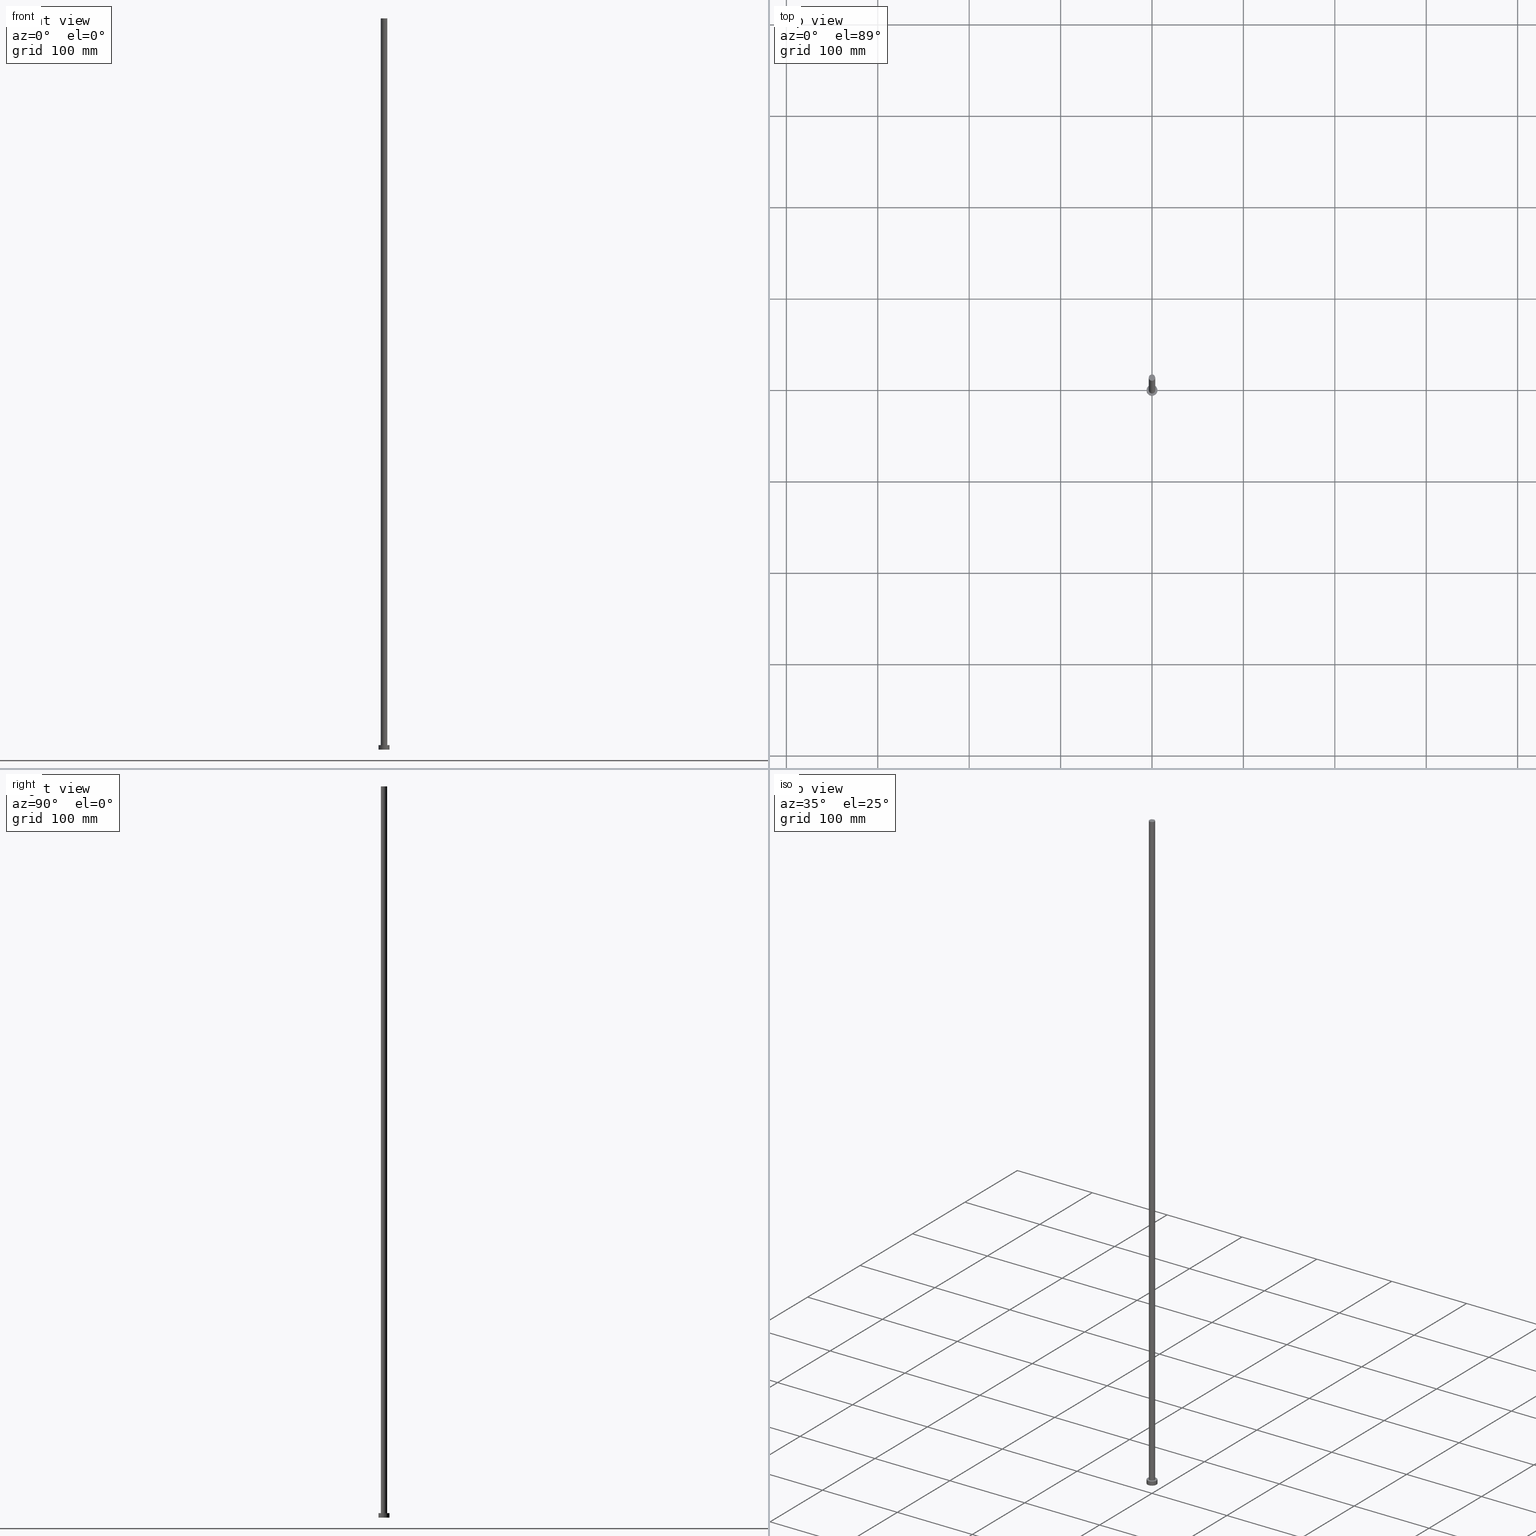
[diagram: canonical four-view strip — front | top / right | iso, engineering-drawing reading convention]
A machine part, canonical four-view strip (front | top / right | iso — engineering-drawing reading convention). The complete STEP part file that produces these views, byte-faithful:
ISO-10303-21;
HEADER;
FILE_DESCRIPTION (( 'STEP AP203' ),
    '1' );
FILE_NAME ('a31a.STEP',
    '2023-02-13T14:48:02',
    ( '' ),
    ( '' ),
    'SwSTEP 2.0',
    'SolidWorks 2019',
    '' );
FILE_SCHEMA (( 'CONFIG_CONTROL_DESIGN' ));
ENDSEC;

DATA;
#1 = CIRCLE ( 'NONE', #143, 6.000000000000000888 ) ;
#2 = CARTESIAN_POINT ( 'NONE',  ( 6.000000000000000888, 7.347880794884120722E-16, 5.000000000000000000 ) ) ;
#3 = PERSON_AND_ORGANIZATION_ROLE ( 'design_owner' ) ;
#4 = FACE_OUTER_BOUND ( 'NONE', #161, .T. ) ;
#5 = DIRECTION ( 'NONE',  ( 1.000000000000000000, 0.000000000000000000, -0.000000000000000000 ) ) ;
#6 = EDGE_LOOP ( 'NONE', ( #187, #248, #135, #122 ) ) ;
#7 = AXIS2_PLACEMENT_3D ( 'NONE', #133, #88, #115 ) ;
#8 = ORIENTED_EDGE ( 'NONE', *, *, #230, .T. ) ;
#9 = DIRECTION ( 'NONE',  ( 1.000000000000000000, 0.000000000000000000, 0.000000000000000000 ) ) ;
#10 = EDGE_LOOP ( 'NONE', ( #164, #141 ) ) ;
#11 = EDGE_CURVE ( 'NONE', #70, #186, #55, .T. ) ;
#12 = APPLICATION_CONTEXT ( 'configuration controlled 3d designs of mechanical parts and assemblies' ) ;
#13 = CC_DESIGN_APPROVAL ( #254, ( #110 ) ) ;
#14 = ADVANCED_FACE ( 'NONE', ( #131 ), #15, .T. ) ;
#15 = CYLINDRICAL_SURFACE ( 'NONE', #156, 3.500000000000000000 ) ;
#16 = EDGE_CURVE ( 'NONE', #118, #33, #235, .T. ) ;
#17 = AXIS2_PLACEMENT_3D ( 'NONE', #97, #181, #196 ) ;
#18 = EDGE_CURVE ( 'NONE', #186, #70, #192, .T. ) ;
#19 = CYLINDRICAL_SURFACE ( 'NONE', #106, 3.500000000000000000 ) ;
#20 = CC_DESIGN_PERSON_AND_ORGANIZATION_ASSIGNMENT ( #111, #66, ( #207 ) ) ;
#21 = CARTESIAN_POINT ( 'NONE',  ( 0.000000000000000000, 0.000000000000000000, 5.000000000000000000 ) ) ;
#22 = CARTESIAN_POINT ( 'NONE',  ( 6.000000000000000888, 7.347880794884120722E-16, 0.000000000000000000 ) ) ;
#23 = APPROVAL_PERSON_ORGANIZATION ( #231, #95, #153 ) ;
#24 = ORIENTED_EDGE ( 'NONE', *, *, #58, .F. ) ;
#25 = FACE_OUTER_BOUND ( 'NONE', #6, .T. ) ;
#26 = DIRECTION ( 'NONE',  ( 1.000000000000000000, 0.000000000000000000, 0.000000000000000000 ) ) ;
#27 = VERTEX_POINT ( 'NONE', #179 ) ;
#28 = PERSON_AND_ORGANIZATION ( #38, #194 ) ;
#29 = CC_DESIGN_SECURITY_CLASSIFICATION ( #110, ( #207 ) ) ;
#30 = ORIENTED_EDGE ( 'NONE', *, *, #11, .T. ) ;
#31 = DIRECTION ( 'NONE',  ( 0.000000000000000000, 0.000000000000000000, 1.000000000000000000 ) ) ;
#32 = MANIFOLD_SOLID_BREP ( 'P�idat vysunut�m3', #204 ) ;
#33 = VERTEX_POINT ( 'NONE', #144 ) ;
#34 = ADVANCED_FACE ( 'NONE', ( #182 ), #223, .T. ) ;
#35 = CC_DESIGN_PERSON_AND_ORGANIZATION_ASSIGNMENT ( #218, #51, ( #227 ) ) ;
#36 = CIRCLE ( 'NONE', #71, 6.000000000000000888 ) ;
#37 = VECTOR ( 'NONE', #173, 1000.000000000000000 ) ;
#38 = PERSON ( 'NEUR�EN�', 'NEUR�EN�', 'NEUR�EN�', ('NEUR�EN�'), ('NEUR�EN�'), ('NEUR�EN�') ) ;
#39 = DIRECTION ( 'NONE',  ( 1.000000000000000000, 0.000000000000000000, 0.000000000000000000 ) ) ;
#40 = ORIENTED_EDGE ( 'NONE', *, *, #16, .F. ) ;
#41 = CC_DESIGN_PERSON_AND_ORGANIZATION_ASSIGNMENT ( #28, #3, ( #169 ) ) ;
#42 = DATE_TIME_ROLE ( 'creation_date' ) ;
#43 = UNCERTAINTY_MEASURE_WITH_UNIT (LENGTH_MEASURE( 1.000000000000000082E-05 ), #65, 'distance_accuracy_value', 'NONE');
#44 = CARTESIAN_POINT ( 'NONE',  ( 3.500000000000000000, 4.286263797015736595E-16, 800.0000000000000000 ) ) ;
#45 = AXIS2_PLACEMENT_3D ( 'NONE', #117, #94, #112 ) ;
#46 = APPROVAL ( #64, 'NEUR�EN�' ) ;
#47 = EDGE_LOOP ( 'NONE', ( #242, #8, #225, #147 ) ) ;
#48 = CIRCLE ( 'NONE', #7, 6.000000000000000888 ) ;
#49 = CC_DESIGN_PERSON_AND_ORGANIZATION_ASSIGNMENT ( #132, #212, ( #110 ) ) ;
#50 = DIRECTION ( 'NONE',  ( 0.000000000000000000, 0.000000000000000000, 1.000000000000000000 ) ) ;
#51 = PERSON_AND_ORGANIZATION_ROLE ( 'creator' ) ;
#52 = VECTOR ( 'NONE', #60, 1000.000000000000000 ) ;
#53 = CARTESIAN_POINT ( 'NONE',  ( 0.000000000000000000, 0.000000000000000000, 5.000000000000000000 ) ) ;
#54 = AXIS2_PLACEMENT_3D ( 'NONE', #84, #160, #68 ) ;
#55 = CIRCLE ( 'NONE', #252, 3.500000000000000000 ) ;
#56 = COORDINATED_UNIVERSAL_TIME_OFFSET ( 1, 0, .AHEAD. ) ;
#57 = LOCAL_TIME ( 15, 48, 2.000000000000000000, #154 ) ;
#58 = EDGE_CURVE ( 'NONE', #198, #118, #36, .T. ) ;
#59 = DESIGN_CONTEXT ( 'detailed design', #12, 'design' ) ;
#60 = DIRECTION ( 'NONE',  ( -0.000000000000000000, -0.000000000000000000, -1.000000000000000000 ) ) ;
#61 = COORDINATED_UNIVERSAL_TIME_OFFSET ( 1, 0, .AHEAD. ) ;
#62 = CARTESIAN_POINT ( 'NONE',  ( -3.500000000000000000, 0.000000000000000000, 800.0000000000000000 ) ) ;
#63 = AXIS2_PLACEMENT_3D ( 'NONE', #21, #83, #240 ) ;
#64 = APPROVAL_STATUS ( 'not_yet_approved' ) ;
#65 =( LENGTH_UNIT ( ) NAMED_UNIT ( * ) SI_UNIT ( .MILLI., .METRE. ) );
#66 = PERSON_AND_ORGANIZATION_ROLE ( 'design_supplier' ) ;
#67 = EDGE_LOOP ( 'NONE', ( #86, #162, #113, #219 ) ) ;
#68 = DIRECTION ( 'NONE',  ( 1.000000000000000000, 0.000000000000000000, 0.000000000000000000 ) ) ;
#69 = PERSON_AND_ORGANIZATION_ROLE ( 'creator' ) ;
#70 = VERTEX_POINT ( 'NONE', #62 ) ;
#71 = AXIS2_PLACEMENT_3D ( 'NONE', #201, #31, #9 ) ;
#72 = CIRCLE ( 'NONE', #54, 6.000000000000000888 ) ;
#73 = CALENDAR_DATE ( 2023, 13, 2 ) ;
#74 = VECTOR ( 'NONE', #233, 1000.000000000000000 ) ;
#75 = CARTESIAN_POINT ( 'NONE',  ( 6.000000000000000888, 7.347880794884120722E-16, 5.000000000000000000 ) ) ;
#76 = CARTESIAN_POINT ( 'NONE',  ( 0.000000000000000000, 0.000000000000000000, 5.000000000000000000 ) ) ;
#77 = PERSON_AND_ORGANIZATION ( #38, #194 ) ;
#78 = CARTESIAN_POINT ( 'NONE',  ( 0.000000000000000000, 0.000000000000000000, 800.0000000000000000 ) ) ;
#79 = AXIS2_PLACEMENT_3D ( 'NONE', #53, #146, #185 ) ;
#80 = CARTESIAN_POINT ( 'NONE',  ( -6.000000000000000888, 0.000000000000000000, 5.000000000000000000 ) ) ;
#81 = PLANE ( 'NONE',  #163 ) ;
#82 = APPLICATION_PROTOCOL_DEFINITION ( 'international standard', 'config_control_design', 1994, #12 ) ;
#83 = DIRECTION ( 'NONE',  ( 0.000000000000000000, 0.000000000000000000, 1.000000000000000000 ) ) ;
#84 = CARTESIAN_POINT ( 'NONE',  ( 0.000000000000000000, 0.000000000000000000, 0.000000000000000000 ) ) ;
#85 = ADVANCED_FACE ( 'NONE', ( #4 ), #213, .T. ) ;
#86 = ORIENTED_EDGE ( 'NONE', *, *, #230, .F. ) ;
#87 = EDGE_CURVE ( 'NONE', #33, #180, #48, .T. ) ;
#88 = DIRECTION ( 'NONE',  ( 0.000000000000000000, 0.000000000000000000, 1.000000000000000000 ) ) ;
#89 = CALENDAR_DATE ( 2023, 13, 2 ) ;
#90 = CC_DESIGN_PERSON_AND_ORGANIZATION_ASSIGNMENT ( #200, #69, ( #207 ) ) ;
#91 = VECTOR ( 'NONE', #215, 1000.000000000000000 ) ;
#92 = PRODUCT_DEFINITION_SHAPE ( 'NONE', 'NONE',  #227 ) ;
#93 = CALENDAR_DATE ( 2023, 13, 2 ) ;
#94 = DIRECTION ( 'NONE',  ( -0.000000000000000000, -0.000000000000000000, -1.000000000000000000 ) ) ;
#95 = APPROVAL ( #105, 'NEUR�EN�' ) ;
#96 = DIRECTION ( 'NONE',  ( -0.000000000000000000, -0.000000000000000000, -1.000000000000000000 ) ) ;
#97 = CARTESIAN_POINT ( 'NONE',  ( 0.000000000000000000, 0.000000000000000000, 800.0000000000000000 ) ) ;
#98 = ADVANCED_FACE ( 'NONE', ( #114 ), #19, .T. ) ;
#99 = AXIS2_PLACEMENT_3D ( 'NONE', #234, #229, #39 ) ;
#100 = DIRECTION ( 'NONE',  ( 1.000000000000000000, 0.000000000000000000, -0.000000000000000000 ) ) ;
#101 = ADVANCED_BREP_SHAPE_REPRESENTATION ( 'a31a', ( #32, #99 ), #246 ) ;
#102 = ORIENTED_EDGE ( 'NONE', *, *, #126, .F. ) ;
#103 = ORIENTED_EDGE ( 'NONE', *, *, #58, .T. ) ;
#104 = DATE_AND_TIME ( #89, #108 ) ;
#105 = APPROVAL_STATUS ( 'not_yet_approved' ) ;
#106 = AXIS2_PLACEMENT_3D ( 'NONE', #244, #96, #237 ) ;
#107 = EDGE_LOOP ( 'NONE', ( #24, #238, #245, #40 ) ) ;
#108 = LOCAL_TIME ( 15, 48, 2.000000000000000000, #155 ) ;
#109 = DIRECTION ( 'NONE',  ( -0.000000000000000000, -0.000000000000000000, -1.000000000000000000 ) ) ;
#110 = SECURITY_CLASSIFICATION ( '', '', #191 ) ;
#111 = PERSON_AND_ORGANIZATION ( #38, #194 ) ;
#112 = DIRECTION ( 'NONE',  ( -1.000000000000000000, 0.000000000000000000, 0.000000000000000000 ) ) ;
#113 = ORIENTED_EDGE ( 'NONE', *, *, #149, .T. ) ;
#114 = FACE_OUTER_BOUND ( 'NONE', #67, .T. ) ;
#115 = DIRECTION ( 'NONE',  ( 1.000000000000000000, 0.000000000000000000, 0.000000000000000000 ) ) ;
#116 = APPROVAL_ROLE ( '' ) ;
#117 = CARTESIAN_POINT ( 'NONE',  ( 0.000000000000000000, 0.000000000000000000, 5.000000000000000000 ) ) ;
#118 = VERTEX_POINT ( 'NONE', #80 ) ;
#119 = DIRECTION ( 'NONE',  ( 1.000000000000000000, 0.000000000000000000, 0.000000000000000000 ) ) ;
#120 = LOCAL_TIME ( 15, 48, 2.000000000000000000, #167 ) ;
#121 = CARTESIAN_POINT ( 'NONE',  ( 3.500000000000000000, 4.286263797015736595E-16, 5.000000000000000000 ) ) ;
#122 = ORIENTED_EDGE ( 'NONE', *, *, #87, .T. ) ;
#123 = DIRECTION ( 'NONE',  ( 1.000000000000000000, 0.000000000000000000, 0.000000000000000000 ) ) ;
#124 = APPROVAL_DATE_TIME ( #104, #46 ) ;
#125 = ORIENTED_EDGE ( 'NONE', *, *, #128, .T. ) ;
#126 = EDGE_CURVE ( 'NONE', #27, #157, #148, .T. ) ;
#127 = SHAPE_DEFINITION_REPRESENTATION ( #92, #101 ) ;
#128 = EDGE_CURVE ( 'NONE', #118, #198, #1, .T. ) ;
#129 = APPROVAL_ROLE ( '' ) ;
#130 = APPROVAL_PERSON_ORGANIZATION ( #255, #254, #129 ) ;
#131 = FACE_OUTER_BOUND ( 'NONE', #47, .T. ) ;
#132 = PERSON_AND_ORGANIZATION ( #38, #194 ) ;
#133 = CARTESIAN_POINT ( 'NONE',  ( 0.000000000000000000, 0.000000000000000000, 0.000000000000000000 ) ) ;
#134 = FACE_BOUND ( 'NONE', #137, .T. ) ;
#135 = ORIENTED_EDGE ( 'NONE', *, *, #16, .T. ) ;
#136 = LINE ( 'NONE', #221, #91 ) ;
#137 = EDGE_LOOP ( 'NONE', ( #102, #178 ) ) ;
#138 = CYLINDRICAL_SURFACE ( 'NONE', #45, 6.000000000000000888 ) ;
#139 = CARTESIAN_POINT ( 'NONE',  ( -6.000000000000000888, 0.000000000000000000, 5.000000000000000000 ) ) ;
#140 = APPROVAL_DATE_TIME ( #247, #95 ) ;
#141 = ORIENTED_EDGE ( 'NONE', *, *, #220, .F. ) ;
#142 = DIRECTION ( 'NONE',  ( 0.000000000000000000, 0.000000000000000000, 1.000000000000000000 ) ) ;
#143 = AXIS2_PLACEMENT_3D ( 'NONE', #76, #176, #119 ) ;
#144 = CARTESIAN_POINT ( 'NONE',  ( -6.000000000000000888, 0.000000000000000000, 0.000000000000000000 ) ) ;
#145 = DATE_AND_TIME ( #174, #57 ) ;
#146 = DIRECTION ( 'NONE',  ( -0.000000000000000000, -0.000000000000000000, -1.000000000000000000 ) ) ;
#147 = ORIENTED_EDGE ( 'NONE', *, *, #149, .F. ) ;
#148 = CIRCLE ( 'NONE', #224, 3.500000000000000000 ) ;
#149 = EDGE_CURVE ( 'NONE', #70, #27, #136, .T. ) ;
#150 = APPROVAL_DATE_TIME ( #189, #254 ) ;
#151 = APPLICATION_PROTOCOL_DEFINITION ( 'international standard', 'config_control_design', 1994, #170 ) ;
#152 = EDGE_CURVE ( 'NONE', #157, #27, #184, .T. ) ;
#153 = APPROVAL_ROLE ( '' ) ;
#154 = COORDINATED_UNIVERSAL_TIME_OFFSET ( 1, 0, .AHEAD. ) ;
#155 = COORDINATED_UNIVERSAL_TIME_OFFSET ( 1, 0, .AHEAD. ) ;
#156 = AXIS2_PLACEMENT_3D ( 'NONE', #228, #109, #203 ) ;
#157 = VERTEX_POINT ( 'NONE', #121 ) ;
#158 = DIRECTION ( 'NONE',  ( 0.000000000000000000, 0.000000000000000000, 1.000000000000000000 ) ) ;
#159 = ORIENTED_EDGE ( 'NONE', *, *, #18, .T. ) ;
#160 = DIRECTION ( 'NONE',  ( 0.000000000000000000, 0.000000000000000000, 1.000000000000000000 ) ) ;
#161 = EDGE_LOOP ( 'NONE', ( #30, #159 ) ) ;
#162 = ORIENTED_EDGE ( 'NONE', *, *, #11, .F. ) ;
#163 = AXIS2_PLACEMENT_3D ( 'NONE', #177, #50, #5 ) ;
#164 = ORIENTED_EDGE ( 'NONE', *, *, #87, .F. ) ;
#165 = DIRECTION ( 'NONE',  ( 0.000000000000000000, 0.000000000000000000, 1.000000000000000000 ) ) ;
#166 = APPROVAL_PERSON_ORGANIZATION ( #77, #46, #116 ) ;
#167 = COORDINATED_UNIVERSAL_TIME_OFFSET ( 1, 0, .AHEAD. ) ;
#168 = CC_DESIGN_DATE_AND_TIME_ASSIGNMENT ( #145, #222, ( #110 ) ) ;
#169 = PRODUCT ( 'a31a', 'a31a', '', ( #239 ) ) ;
#170 = APPLICATION_CONTEXT ( 'configuration controlled 3d designs of mechanical parts and assemblies' ) ;
#171 =( NAMED_UNIT ( * ) PLANE_ANGLE_UNIT ( ) SI_UNIT ( $, .RADIAN. ) );
#172 = ADVANCED_FACE ( 'NONE', ( #25 ), #138, .T. ) ;
#173 = DIRECTION ( 'NONE',  ( -0.000000000000000000, -0.000000000000000000, -1.000000000000000000 ) ) ;
#174 = CALENDAR_DATE ( 2023, 13, 2 ) ;
#175 = CARTESIAN_POINT ( 'NONE',  ( 0.000000000000000000, 0.000000000000000000, 5.000000000000000000 ) ) ;
#176 = DIRECTION ( 'NONE',  ( 0.000000000000000000, 0.000000000000000000, 1.000000000000000000 ) ) ;
#177 = CARTESIAN_POINT ( 'NONE',  ( 0.000000000000000000, 0.000000000000000000, 0.000000000000000000 ) ) ;
#178 = ORIENTED_EDGE ( 'NONE', *, *, #152, .F. ) ;
#179 = CARTESIAN_POINT ( 'NONE',  ( -3.500000000000000000, 0.000000000000000000, 5.000000000000000000 ) ) ;
#180 = VERTEX_POINT ( 'NONE', #22 ) ;
#181 = DIRECTION ( 'NONE',  ( 0.000000000000000000, 0.000000000000000000, 1.000000000000000000 ) ) ;
#182 = FACE_OUTER_BOUND ( 'NONE', #107, .T. ) ;
#183 = AXIS2_PLACEMENT_3D ( 'NONE', #78, #158, #26 ) ;
#184 = CIRCLE ( 'NONE', #63, 3.500000000000000000 ) ;
#185 = DIRECTION ( 'NONE',  ( -1.000000000000000000, 0.000000000000000000, 0.000000000000000000 ) ) ;
#186 = VERTEX_POINT ( 'NONE', #236 ) ;
#187 = ORIENTED_EDGE ( 'NONE', *, *, #251, .F. ) ;
#188 = ADVANCED_FACE ( 'NONE', ( #134, #214 ), #241, .T. ) ;
#189 = DATE_AND_TIME ( #73, #120 ) ;
#190 = CC_DESIGN_DATE_AND_TIME_ASSIGNMENT ( #195, #42, ( #227 ) ) ;
#191 = SECURITY_CLASSIFICATION_LEVEL ( 'unclassified' ) ;
#192 = CIRCLE ( 'NONE', #183, 3.500000000000000000 ) ;
#193 = DIRECTION ( 'NONE',  ( 0.000000000000000000, 0.000000000000000000, 1.000000000000000000 ) ) ;
#194 = ORGANIZATION ( 'NEUR�EN�', 'NEUR�EN�', '' ) ;
#195 = DATE_AND_TIME ( #208, #232 ) ;
#196 = DIRECTION ( 'NONE',  ( 1.000000000000000000, 0.000000000000000000, -0.000000000000000000 ) ) ;
#197 = CC_DESIGN_APPROVAL ( #95, ( #227 ) ) ;
#198 = VERTEX_POINT ( 'NONE', #2 ) ;
#199 = CARTESIAN_POINT ( 'NONE',  ( 0.000000000000000000, 0.000000000000000000, 5.000000000000000000 ) ) ;
#200 = PERSON_AND_ORGANIZATION ( #38, #194 ) ;
#201 = CARTESIAN_POINT ( 'NONE',  ( 0.000000000000000000, 0.000000000000000000, 5.000000000000000000 ) ) ;
#202 = EDGE_LOOP ( 'NONE', ( #125, #103 ) ) ;
#203 = DIRECTION ( 'NONE',  ( -1.000000000000000000, 0.000000000000000000, 0.000000000000000000 ) ) ;
#204 = CLOSED_SHELL ( 'NONE', ( #14, #34, #172, #188, #206, #98, #85 ) ) ;
#205 = PRODUCT_RELATED_PRODUCT_CATEGORY ( 'detail', '', ( #169 ) ) ;
#206 = ADVANCED_FACE ( 'NONE', ( #217 ), #81, .F. ) ;
#207 = PRODUCT_DEFINITION_FORMATION_WITH_SPECIFIED_SOURCE ( 'LIBOVOLN�', '', #169, .NOT_KNOWN. ) ;
#208 = CALENDAR_DATE ( 2023, 13, 2 ) ;
#209 =( NAMED_UNIT ( * ) SI_UNIT ( $, .STERADIAN. ) SOLID_ANGLE_UNIT ( ) );
#210 = LINE ( 'NONE', #44, #37 ) ;
#211 = LINE ( 'NONE', #75, #74 ) ;
#212 = PERSON_AND_ORGANIZATION_ROLE ( 'classification_officer' ) ;
#213 = PLANE ( 'NONE',  #17 ) ;
#214 = FACE_OUTER_BOUND ( 'NONE', #202, .T. ) ;
#215 = DIRECTION ( 'NONE',  ( -0.000000000000000000, -0.000000000000000000, -1.000000000000000000 ) ) ;
#216 = APPROVAL_STATUS ( 'not_yet_approved' ) ;
#217 = FACE_OUTER_BOUND ( 'NONE', #10, .T. ) ;
#218 = PERSON_AND_ORGANIZATION ( #38, #194 ) ;
#219 = ORIENTED_EDGE ( 'NONE', *, *, #126, .T. ) ;
#220 = EDGE_CURVE ( 'NONE', #180, #33, #72, .T. ) ;
#221 = CARTESIAN_POINT ( 'NONE',  ( -3.500000000000000000, 0.000000000000000000, 800.0000000000000000 ) ) ;
#222 = DATE_TIME_ROLE ( 'classification_date' ) ;
#223 = CYLINDRICAL_SURFACE ( 'NONE', #79, 6.000000000000000888 ) ;
#224 = AXIS2_PLACEMENT_3D ( 'NONE', #199, #142, #123 ) ;
#225 = ORIENTED_EDGE ( 'NONE', *, *, #152, .T. ) ;
#226 = LOCAL_TIME ( 15, 48, 2.000000000000000000, #56 ) ;
#227 = PRODUCT_DEFINITION ( 'NEZN�M�', '', #207, #59 ) ;
#228 = CARTESIAN_POINT ( 'NONE',  ( 0.000000000000000000, 0.000000000000000000, 800.0000000000000000 ) ) ;
#229 = DIRECTION ( 'NONE',  ( 0.000000000000000000, 0.000000000000000000, 1.000000000000000000 ) ) ;
#230 = EDGE_CURVE ( 'NONE', #186, #157, #210, .T. ) ;
#231 = PERSON_AND_ORGANIZATION ( #38, #194 ) ;
#232 = LOCAL_TIME ( 15, 48, 2.000000000000000000, #61 ) ;
#233 = DIRECTION ( 'NONE',  ( -0.000000000000000000, -0.000000000000000000, -1.000000000000000000 ) ) ;
#234 = CARTESIAN_POINT ( 'NONE',  ( 0.000000000000000000, 0.000000000000000000, 0.000000000000000000 ) ) ;
#235 = LINE ( 'NONE', #139, #52 ) ;
#236 = CARTESIAN_POINT ( 'NONE',  ( 3.500000000000000000, 4.286263797015736595E-16, 800.0000000000000000 ) ) ;
#237 = DIRECTION ( 'NONE',  ( -1.000000000000000000, 0.000000000000000000, 0.000000000000000000 ) ) ;
#238 = ORIENTED_EDGE ( 'NONE', *, *, #251, .T. ) ;
#239 = MECHANICAL_CONTEXT ( 'NONE', #170, 'mechanical' ) ;
#240 = DIRECTION ( 'NONE',  ( 1.000000000000000000, 0.000000000000000000, 0.000000000000000000 ) ) ;
#241 = PLANE ( 'NONE',  #249 ) ;
#242 = ORIENTED_EDGE ( 'NONE', *, *, #18, .F. ) ;
#243 = CARTESIAN_POINT ( 'NONE',  ( 0.000000000000000000, 0.000000000000000000, 800.0000000000000000 ) ) ;
#244 = CARTESIAN_POINT ( 'NONE',  ( 0.000000000000000000, 0.000000000000000000, 800.0000000000000000 ) ) ;
#245 = ORIENTED_EDGE ( 'NONE', *, *, #220, .T. ) ;
#246 =( GEOMETRIC_REPRESENTATION_CONTEXT ( 3 ) GLOBAL_UNCERTAINTY_ASSIGNED_CONTEXT ( ( #43 ) ) GLOBAL_UNIT_ASSIGNED_CONTEXT ( ( #65, #171, #209 ) ) REPRESENTATION_CONTEXT ( 'NONE', 'WORKASPACE' ) );
#247 = DATE_AND_TIME ( #93, #226 ) ;
#248 = ORIENTED_EDGE ( 'NONE', *, *, #128, .F. ) ;
#249 = AXIS2_PLACEMENT_3D ( 'NONE', #175, #193, #100 ) ;
#250 = DIRECTION ( 'NONE',  ( 1.000000000000000000, 0.000000000000000000, 0.000000000000000000 ) ) ;
#251 = EDGE_CURVE ( 'NONE', #198, #180, #211, .T. ) ;
#252 = AXIS2_PLACEMENT_3D ( 'NONE', #243, #165, #250 ) ;
#253 = CC_DESIGN_APPROVAL ( #46, ( #207 ) ) ;
#254 = APPROVAL ( #216, 'NEUR�EN�' ) ;
#255 = PERSON_AND_ORGANIZATION ( #38, #194 ) ;
ENDSEC;
END-ISO-10303-21;
